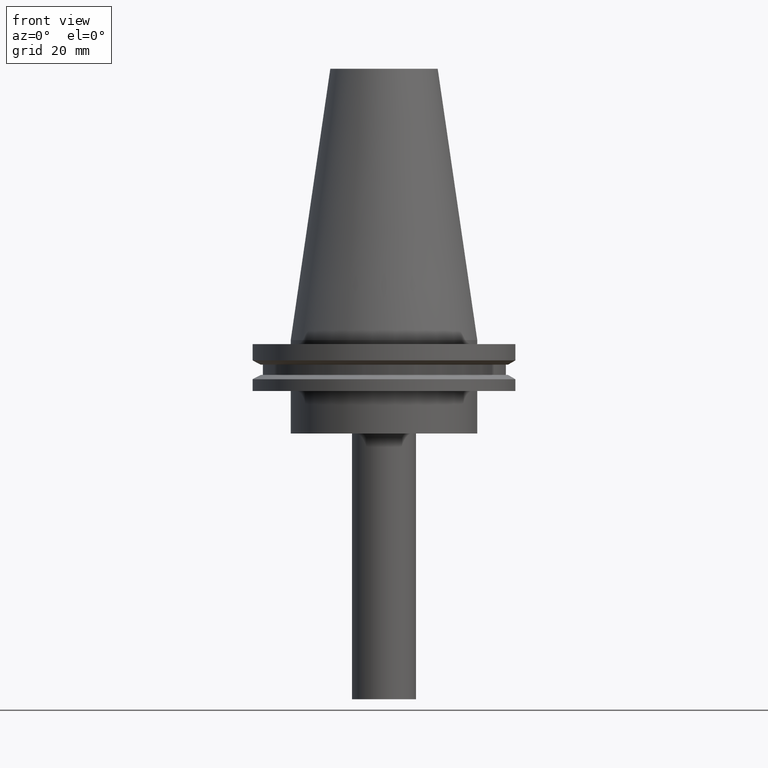
[diagram: clean part render]
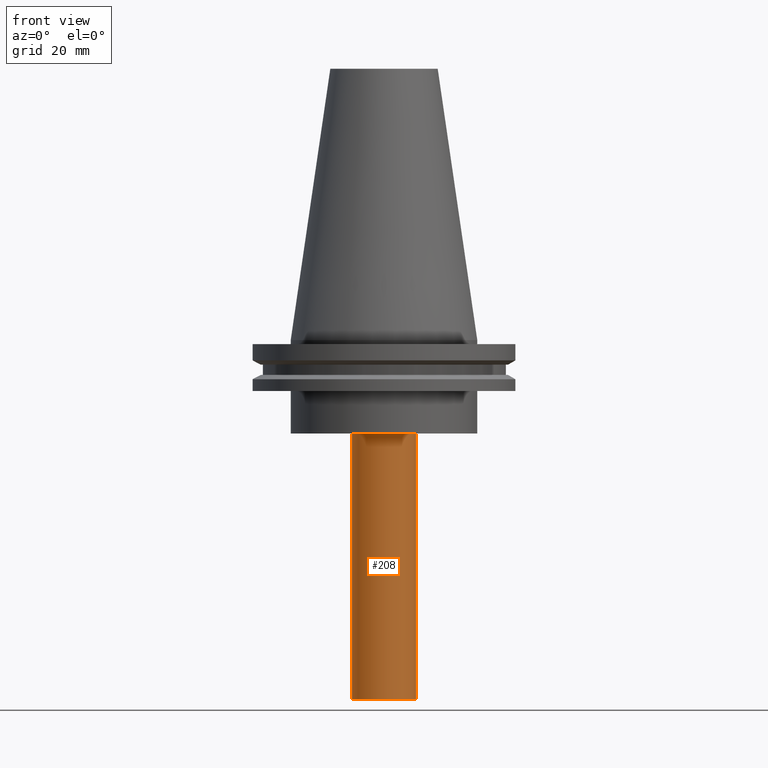
[diagram: same view with one face highlighted and labeled with its STEP entity id]
A machine part, front view. The second image highlights one B-rep face of the part: STEP entity #208.
In plain terms, the highlighted cylindrical surface (bore or boss wall) has radius 12 mm, axis along (-0, -0, 1).
Its self-contained STEP definition (entity closure, byte-faithful):
#1 = CARTESIAN_POINT ( 'NONE',  ( 0.000000000000000000, 0.000000000000000000, -134.5000000000000000 ) ) ;
#2 = VERTEX_POINT ( 'NONE', #346 ) ;
#18 = FACE_OUTER_BOUND ( 'NONE', #126, .T. ) ;
#19 = CIRCLE ( 'NONE', #296, 12.00000000000000000 ) ;
#26 = EDGE_CURVE ( 'NONE', #281, #281, #19, .T. ) ;
#38 = DIRECTION ( 'NONE',  ( 1.000000000000000000, 0.000000000000000000, 0.000000000000000000 ) ) ;
#52 = FACE_OUTER_BOUND ( 'NONE', #245, .T. ) ;
#61 = ORIENTED_EDGE ( 'NONE', *, *, #149, .F. ) ;
#110 = CARTESIAN_POINT ( 'NONE',  ( 12.00000000000000000, 0.000000000000000000, -134.5000000000000000 ) ) ;
#121 = AXIS2_PLACEMENT_3D ( 'NONE', #358, #148, #386 ) ;
#126 = EDGE_LOOP ( 'NONE', ( #276 ) ) ;
#148 = DIRECTION ( 'NONE',  ( -0.000000000000000000, -0.000000000000000000, 1.000000000000000000 ) ) ;
#149 = EDGE_CURVE ( 'NONE', #2, #2, #211, .T. ) ;
#173 = CARTESIAN_POINT ( 'NONE',  ( 0.000000000000000000, 0.000000000000000000, 0.000000000000000000 ) ) ;
#175 = DIRECTION ( 'NONE',  ( -0.000000000000000000, -0.000000000000000000, 1.000000000000000000 ) ) ;
#208 = ADVANCED_FACE ( 'NONE', ( #52, #18 ), #293, .T. ) ;
#211 = CIRCLE ( 'NONE', #121, 12.00000000000000000 ) ;
#236 = AXIS2_PLACEMENT_3D ( 'NONE', #173, #175, #334 ) ;
#245 = EDGE_LOOP ( 'NONE', ( #61 ) ) ;
#276 = ORIENTED_EDGE ( 'NONE', *, *, #26, .T. ) ;
#281 = VERTEX_POINT ( 'NONE', #110 ) ;
#293 = CYLINDRICAL_SURFACE ( 'NONE', #236, 12.00000000000000000 ) ;
#296 = AXIS2_PLACEMENT_3D ( 'NONE', #1, #379, #38 ) ;
#334 = DIRECTION ( 'NONE',  ( 1.000000000000000000, 0.000000000000000000, 0.000000000000000000 ) ) ;
#346 = CARTESIAN_POINT ( 'NONE',  ( 12.00000000000000000, 0.000000000000000000, -35.00000000000000000 ) ) ;
#358 = CARTESIAN_POINT ( 'NONE',  ( 0.000000000000000000, 0.000000000000000000, -35.00000000000000000 ) ) ;
#379 = DIRECTION ( 'NONE',  ( -0.000000000000000000, -0.000000000000000000, 1.000000000000000000 ) ) ;
#386 = DIRECTION ( 'NONE',  ( 1.000000000000000000, 0.000000000000000000, 0.000000000000000000 ) ) ;